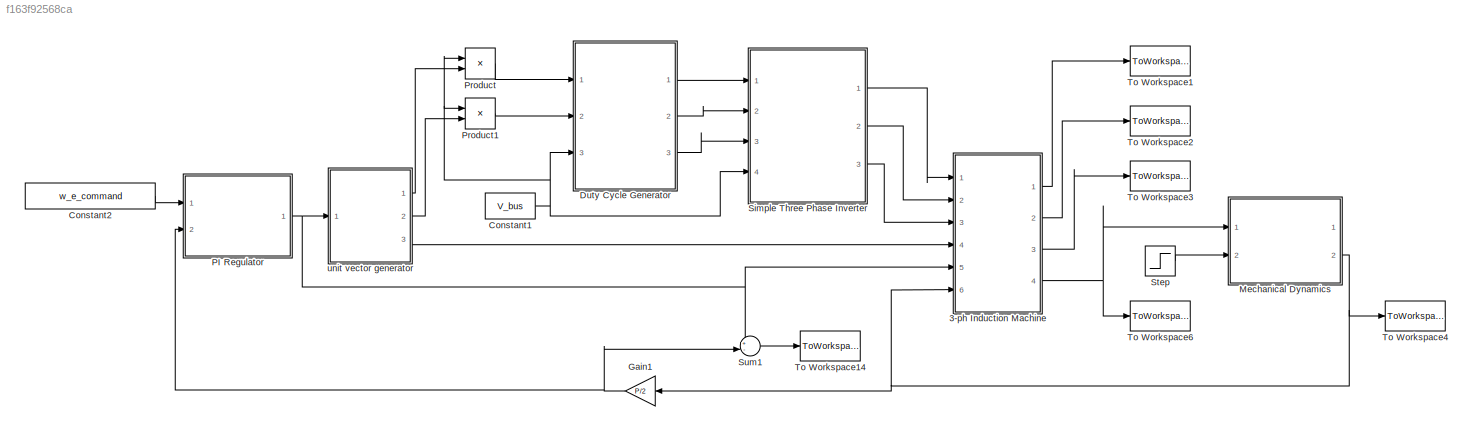
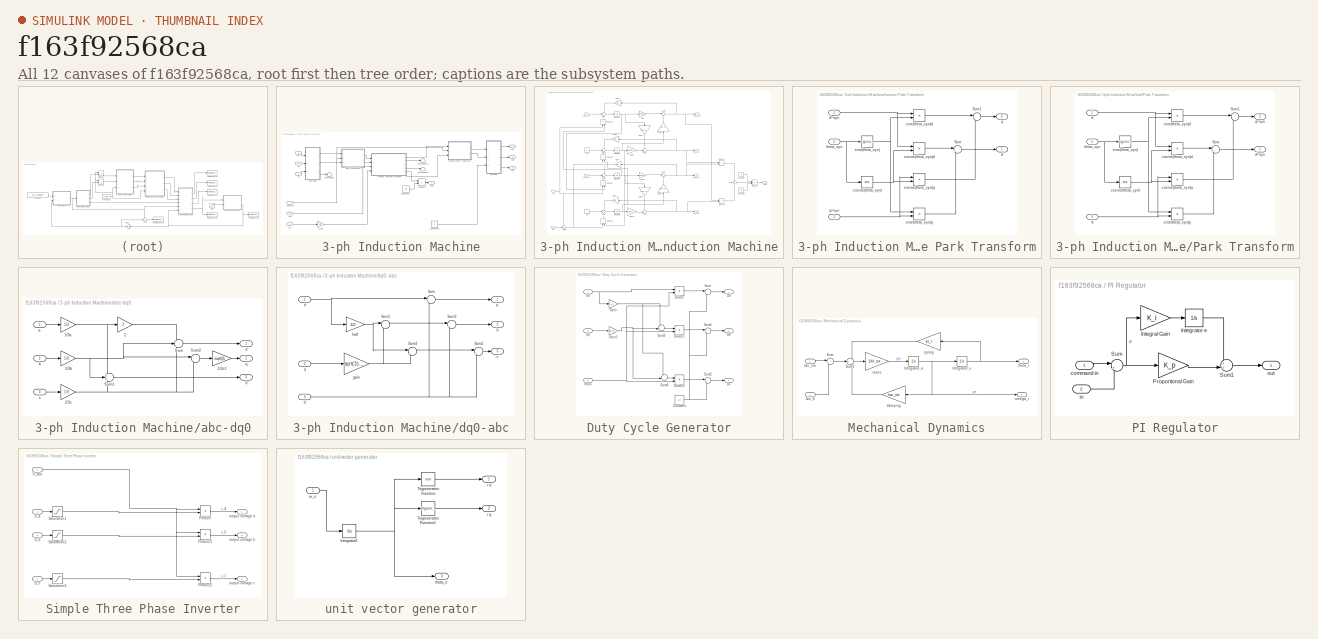
[diagram: thumbnail index - all 12 canvases of the model, root first then tree order]
MODEL slx_f163f92568ca
KIND model
CONFIG AbsTol = auto
CONFIG FixedStep = auto
CONFIG MaxStep = 1/(w_e*50)
CONFIG MinStep = auto
CONFIG RelTol = 1e-3
CONFIG SampleTimeConstraint = Unconstrained
CONFIG Solver = VariableStepAuto
CONFIG SolverMode = Auto
CONFIG SolverName = VariableStepAuto
CONFIG StartTime = 0.0
CONFIG StopTime = t_end
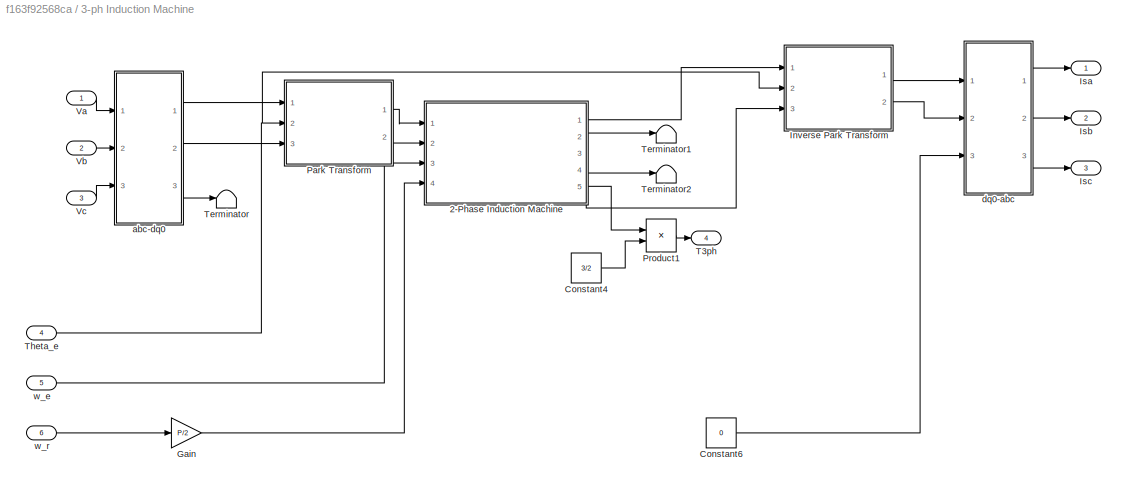
BLOCK [SubSystem] 3-ph Induction Machine
  Ports = [6, 4]
  RequestExecContextInheritance = off
  Variant = off
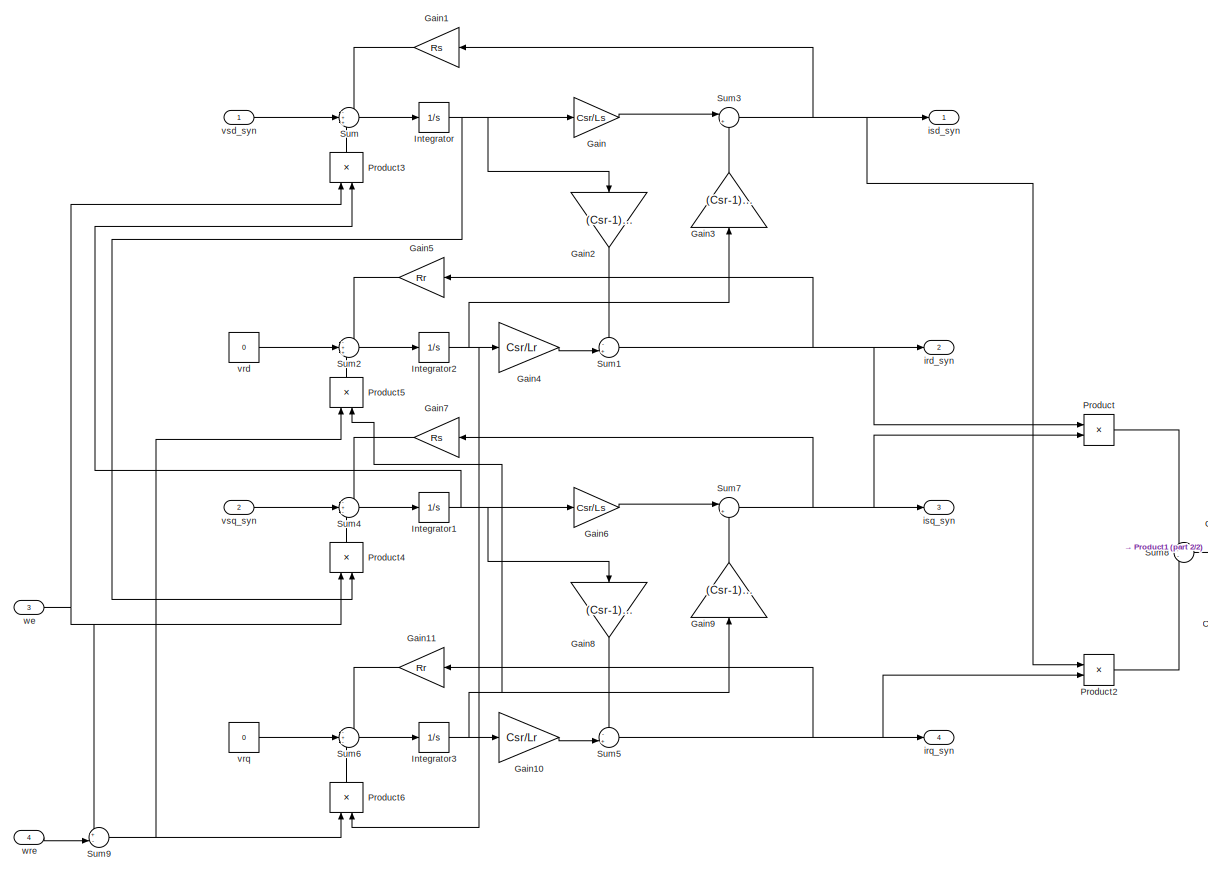
[diagram: 3-ph Induction Machine/2-Phase Induction Machine - part 1/2, most of the canvas]
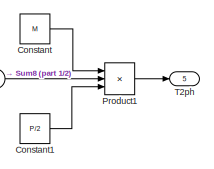
[diagram: 3-ph Induction Machine/2-Phase Induction Machine - part 2/2, middle right region]
BLOCK [SubSystem] 3-ph Induction Machine/2-Phase Induction Machine
  Ports = [4, 5]
  RequestExecContextInheritance = off
  Variant = off
BLOCK [Constant] 3-ph Induction Machine/2-Phase Induction Machine/Constant
  Value = M
BLOCK [Constant] 3-ph Induction Machine/2-Phase Induction Machine/Constant1
  Value = P/2
BLOCK [Gain] 3-ph Induction Machine/2-Phase Induction Machine/Gain
  Gain = Csr/Ls
  OutDataTypeStr = Inherit: Inherit via internal rule
  ParamDataTypeStr = Inherit: Inherit via internal rule
  SaturateOnIntegerOverflow = off
BLOCK [Gain] 3-ph Induction Machine/2-Phase Induction Machine/Gain1
  Gain = Rs
  OutDataTypeStr = Inherit: Inherit via internal rule
  ParamDataTypeStr = Inherit: Inherit via internal rule
  SaturateOnIntegerOverflow = off
BLOCK [Gain] 3-ph Induction Machine/2-Phase Induction Machine/Gain10
  Gain = Csr/Lr
  OutDataTypeStr = Inherit: Inherit via internal rule
  ParamDataTypeStr = Inherit: Inherit via internal rule
  SaturateOnIntegerOverflow = off
BLOCK [Gain] 3-ph Induction Machine/2-Phase Induction Machine/Gain11
  Gain = Rr
  OutDataTypeStr = Inherit: Inherit via internal rule
  ParamDataTypeStr = Inherit: Inherit via internal rule
  SaturateOnIntegerOverflow = off
BLOCK [Gain] 3-ph Induction Machine/2-Phase Induction Machine/Gain2
  Gain = (Csr-1)/M
  OutDataTypeStr = Inherit: Inherit via internal rule
  ParamDataTypeStr = Inherit: Inherit via internal rule
  SaturateOnIntegerOverflow = off
BLOCK [Gain] 3-ph Induction Machine/2-Phase Induction Machine/Gain3
  Gain = (Csr-1)/M
  OutDataTypeStr = Inherit: Inherit via internal rule
  ParamDataTypeStr = Inherit: Inherit via internal rule
  SaturateOnIntegerOverflow = off
BLOCK [Gain] 3-ph Induction Machine/2-Phase Induction Machine/Gain4
  Gain = Csr/Lr
  OutDataTypeStr = Inherit: Inherit via internal rule
  ParamDataTypeStr = Inherit: Inherit via internal rule
  SaturateOnIntegerOverflow = off
BLOCK [Gain] 3-ph Induction Machine/2-Phase Induction Machine/Gain5
  Gain = Rr
  OutDataTypeStr = Inherit: Inherit via internal rule
  ParamDataTypeStr = Inherit: Inherit via internal rule
  SaturateOnIntegerOverflow = off
BLOCK [Gain] 3-ph Induction Machine/2-Phase Induction Machine/Gain6
  Gain = Csr/Ls
  OutDataTypeStr = Inherit: Inherit via internal rule
  ParamDataTypeStr = Inherit: Inherit via internal rule
  SaturateOnIntegerOverflow = off
BLOCK [Gain] 3-ph Induction Machine/2-Phase Induction Machine/Gain7
  Gain = Rs
  OutDataTypeStr = Inherit: Inherit via internal rule
  ParamDataTypeStr = Inherit: Inherit via internal rule
  SaturateOnIntegerOverflow = off
BLOCK [Gain] 3-ph Induction Machine/2-Phase Induction Machine/Gain8
  Gain = (Csr-1)/M
  OutDataTypeStr = Inherit: Inherit via internal rule
  ParamDataTypeStr = Inherit: Inherit via internal rule
  SaturateOnIntegerOverflow = off
BLOCK [Gain] 3-ph Induction Machine/2-Phase Induction Machine/Gain9
  Gain = (Csr-1)/M
  OutDataTypeStr = Inherit: Inherit via internal rule
  ParamDataTypeStr = Inherit: Inherit via internal rule
  SaturateOnIntegerOverflow = off
BLOCK [Integrator] 3-ph Induction Machine/2-Phase Induction Machine/Integrator
  Ports = [1, 1]
BLOCK [Integrator] 3-ph Induction Machine/2-Phase Induction Machine/Integrator1
  Ports = [1, 1]
BLOCK [Integrator] 3-ph Induction Machine/2-Phase Induction Machine/Integrator2
  Ports = [1, 1]
BLOCK [Integrator] 3-ph Induction Machine/2-Phase Induction Machine/Integrator3
  Ports = [1, 1]
BLOCK [Product] 3-ph Induction Machine/2-Phase Induction Machine/Product
  InputSameDT = off
  OutDataTypeStr = Inherit: Inherit via internal rule
  Ports = [2, 1]
  RndMeth = Floor
  SaturateOnIntegerOverflow = off
BLOCK [Product] 3-ph Induction Machine/2-Phase Induction Machine/Product1
  InputSameDT = off
  Inputs = 3
  OutDataTypeStr = Inherit: Inherit via internal rule
  Ports = [3, 1]
  RndMeth = Floor
  SaturateOnIntegerOverflow = off
BLOCK [Product] 3-ph Induction Machine/2-Phase Induction Machine/Product2
  InputSameDT = off
  OutDataTypeStr = Inherit: Inherit via internal rule
  Ports = [2, 1]
  RndMeth = Floor
  SaturateOnIntegerOverflow = off
BLOCK [Product] 3-ph Induction Machine/2-Phase Induction Machine/Product3
  InputSameDT = off
  OutDataTypeStr = Inherit: Inherit via internal rule
  Ports = [2, 1]
  RndMeth = Floor
  SaturateOnIntegerOverflow = off
BLOCK [Product] 3-ph Induction Machine/2-Phase Induction Machine/Product4
  InputSameDT = off
  OutDataTypeStr = Inherit: Inherit via internal rule
  Ports = [2, 1]
  RndMeth = Floor
  SaturateOnIntegerOverflow = off
BLOCK [Product] 3-ph Induction Machine/2-Phase Induction Machine/Product5
  InputSameDT = off
  OutDataTypeStr = Inherit: Inherit via internal rule
  Ports = [2, 1]
  RndMeth = Floor
  SaturateOnIntegerOverflow = off
BLOCK [Product] 3-ph Induction Machine/2-Phase Induction Machine/Product6
  InputSameDT = off
  OutDataTypeStr = Inherit: Inherit via internal rule
  Ports = [2, 1]
  RndMeth = Floor
  SaturateOnIntegerOverflow = off
BLOCK [Sum] 3-ph Induction Machine/2-Phase Induction Machine/Sum
  IconShape = round
  InputSameDT = off
  Inputs = -++
  OutDataTypeStr = Inherit: Inherit via internal rule
  Ports = [3, 1]
  SaturateOnIntegerOverflow = off
BLOCK [Sum] 3-ph Induction Machine/2-Phase Induction Machine/Sum1
  IconShape = round
  InputSameDT = off
  Inputs = -+|
  OutDataTypeStr = Inherit: Inherit via internal rule
  Ports = [2, 1]
  SaturateOnIntegerOverflow = off
BLOCK [Sum] 3-ph Induction Machine/2-Phase Induction Machine/Sum2
  IconShape = round
  InputSameDT = off
  Inputs = -++
  OutDataTypeStr = Inherit: Inherit via internal rule
  Ports = [3, 1]
  SaturateOnIntegerOverflow = off
BLOCK [Sum] 3-ph Induction Machine/2-Phase Induction Machine/Sum3
  IconShape = round
  InputSameDT = off
  Inputs = |+-
  OutDataTypeStr = Inherit: Inherit via internal rule
  Ports = [2, 1]
  SaturateOnIntegerOverflow = off
BLOCK [Sum] 3-ph Induction Machine/2-Phase Induction Machine/Sum4
  IconShape = round
  InputSameDT = off
  Inputs = -+-
  OutDataTypeStr = Inherit: Inherit via internal rule
  Ports = [3, 1]
  SaturateOnIntegerOverflow = off
BLOCK [Sum] 3-ph Induction Machine/2-Phase Induction Machine/Sum5
  IconShape = round
  InputSameDT = off
  Inputs = -+|
  OutDataTypeStr = Inherit: Inherit via internal rule
  Ports = [2, 1]
  SaturateOnIntegerOverflow = off
BLOCK [Sum] 3-ph Induction Machine/2-Phase Induction Machine/Sum6
  IconShape = round
  InputSameDT = off
  Inputs = -+-
  OutDataTypeStr = Inherit: Inherit via internal rule
  Ports = [3, 1]
  SaturateOnIntegerOverflow = off
BLOCK [Sum] 3-ph Induction Machine/2-Phase Induction Machine/Sum7
  IconShape = round
  InputSameDT = off
  Inputs = |+-
  OutDataTypeStr = Inherit: Inherit via internal rule
  Ports = [2, 1]
  SaturateOnIntegerOverflow = off
BLOCK [Sum] 3-ph Induction Machine/2-Phase Induction Machine/Sum8
  IconShape = round
  InputSameDT = off
  Inputs = +-
  OutDataTypeStr = Inherit: Inherit via internal rule
  Ports = [2, 1]
  SaturateOnIntegerOverflow = off
BLOCK [Sum] 3-ph Induction Machine/2-Phase Induction Machine/Sum9
  IconShape = round
  InputSameDT = off
  Inputs = +-|
  OutDataTypeStr = Inherit: Inherit via internal rule
  Ports = [2, 1]
  SaturateOnIntegerOverflow = off
BLOCK [Outport] 3-ph Induction Machine/2-Phase Induction Machine/T2ph
  IconDisplay = Port number
  Port = 5
BLOCK [Outport] 3-ph Induction Machine/2-Phase Induction Machine/ird_syn
  IconDisplay = Port number
  Port = 2
BLOCK [Outport] 3-ph Induction Machine/2-Phase Induction Machine/irq_syn
  IconDisplay = Port number
  Port = 4
BLOCK [Outport] 3-ph Induction Machine/2-Phase Induction Machine/isd_syn
  IconDisplay = Port number
BLOCK [Outport] 3-ph Induction Machine/2-Phase Induction Machine/isq_syn
  IconDisplay = Port number
  Port = 3
BLOCK [Constant] 3-ph Induction Machine/2-Phase Induction Machine/vrd
  Value = 0
BLOCK [Constant] 3-ph Induction Machine/2-Phase Induction Machine/vrq
  Value = 0
BLOCK [Inport] 3-ph Induction Machine/2-Phase Induction Machine/vsd_syn
  IconDisplay = Port number
BLOCK [Inport] 3-ph Induction Machine/2-Phase Induction Machine/vsq_syn
  IconDisplay = Port number
  Port = 2
BLOCK [Inport] 3-ph Induction Machine/2-Phase Induction Machine/we
  IconDisplay = Port number
  Port = 3
BLOCK [Inport] 3-ph Induction Machine/2-Phase Induction Machine/wre
  IconDisplay = Port number
  Port = 4
BLOCK [Constant] 3-ph Induction Machine/Constant4
  Value = 3/2
BLOCK [Constant] 3-ph Induction Machine/Constant6
  Value = 0
BLOCK [Gain] 3-ph Induction Machine/Gain
  Gain = P/2
  OutDataTypeStr = Inherit: Inherit via internal rule
  ParamDataTypeStr = Inherit: Inherit via internal rule
  SaturateOnIntegerOverflow = off
BLOCK [SubSystem] 3-ph Induction Machine/Inverse Park Transform
  Ports = [3, 2]
  RequestExecContextInheritance = off
  Variant = off
BLOCK [Sum] 3-ph Induction Machine/Inverse Park Transform/Sum
  IconShape = round
  InputSameDT = off
  Inputs = |+-
  OutDataTypeStr = Inherit: Inherit via internal rule
  Ports = [2, 1]
  SaturateOnIntegerOverflow = off
BLOCK [Sum] 3-ph Induction Machine/Inverse Park Transform/Sum1
  IconShape = round
  InputSameDT = off
  Inputs = |++
  OutDataTypeStr = Inherit: Inherit via internal rule
  Ports = [2, 1]
  SaturateOnIntegerOverflow = off
BLOCK [Trigonometry] 3-ph Induction Machine/Inverse Park Transform/cosine(theta_syn)
  Operator = cos
  Ports = [1, 1]
BLOCK [Product] 3-ph Induction Machine/Inverse Park Transform/cosine(theta_syn)d
  InputSameDT = off
  OutDataTypeStr = Inherit: Inherit via internal rule
  Ports = [2, 1]
  RndMeth = Floor
  SaturateOnIntegerOverflow = off
BLOCK [Product] 3-ph Induction Machine/Inverse Park Transform/cosine(theta_syn)q
  InputSameDT = off
  OutDataTypeStr = Inherit: Inherit via internal rule
  Ports = [2, 1]
  RndMeth = Floor
  SaturateOnIntegerOverflow = off
BLOCK [Outport] 3-ph Induction Machine/Inverse Park Transform/d
  IconDisplay = Port number
BLOCK [Inport] 3-ph Induction Machine/Inverse Park Transform/d^syn
  IconDisplay = Port number
BLOCK [Outport] 3-ph Induction Machine/Inverse Park Transform/q
  IconDisplay = Port number
  Port = 2
BLOCK [Inport] 3-ph Induction Machine/Inverse Park Transform/q^syn
  IconDisplay = Port number
  Port = 3
BLOCK [Trigonometry] 3-ph Induction Machine/Inverse Park Transform/sine(theta_syn)
  Ports = [1, 1]
BLOCK [Product] 3-ph Induction Machine/Inverse Park Transform/sine(theta_syn)d
  InputSameDT = off
  OutDataTypeStr = Inherit: Inherit via internal rule
  Ports = [2, 1]
  RndMeth = Floor
  SaturateOnIntegerOverflow = off
BLOCK [Product] 3-ph Induction Machine/Inverse Park Transform/sine(theta_syn)q
  InputSameDT = off
  OutDataTypeStr = Inherit: Inherit via internal rule
  Ports = [2, 1]
  RndMeth = Floor
  SaturateOnIntegerOverflow = off
BLOCK [Inport] 3-ph Induction Machine/Inverse Park Transform/theta_syn
  IconDisplay = Port number
  Port = 2
BLOCK [Outport] 3-ph Induction Machine/Isa
  IconDisplay = Port number
BLOCK [Outport] 3-ph Induction Machine/Isb
  IconDisplay = Port number
  Port = 2
BLOCK [Outport] 3-ph Induction Machine/Isc
  IconDisplay = Port number
  Port = 3
BLOCK [SubSystem] 3-ph Induction Machine/Park Transform
  Ports = [3, 2]
  RequestExecContextInheritance = off
  Variant = off
BLOCK [Sum] 3-ph Induction Machine/Park Transform/Sum
  IconShape = round
  InputSameDT = off
  Inputs = |++
  OutDataTypeStr = Inherit: Inherit via internal rule
  Ports = [2, 1]
  SaturateOnIntegerOverflow = off
BLOCK [Sum] 3-ph Induction Machine/Park Transform/Sum1
  IconShape = round
  InputSameDT = off
  Inputs = |-+
  OutDataTypeStr = Inherit: Inherit via internal rule
  Ports = [2, 1]
  SaturateOnIntegerOverflow = off
BLOCK [Trigonometry] 3-ph Induction Machine/Park Transform/cosine(theta_syn)
  Operator = cos
  Ports = [1, 1]
BLOCK [Product] 3-ph Induction Machine/Park Transform/cosine(theta_syn)d
  InputSameDT = off
  OutDataTypeStr = Inherit: Inherit via internal rule
  Ports = [2, 1]
  RndMeth = Floor
  SaturateOnIntegerOverflow = off
BLOCK [Product] 3-ph Induction Machine/Park Transform/cosine(theta_syn)q
  InputSameDT = off
  OutDataTypeStr = Inherit: Inherit via internal rule
  Ports = [2, 1]
  RndMeth = Floor
  SaturateOnIntegerOverflow = off
BLOCK [Inport] 3-ph Induction Machine/Park Transform/d
  IconDisplay = Port number
BLOCK [Outport] 3-ph Induction Machine/Park Transform/d^syn
  IconDisplay = Port number
BLOCK [Inport] 3-ph Induction Machine/Park Transform/q
  IconDisplay = Port number
  Port = 3
BLOCK [Outport] 3-ph Induction Machine/Park Transform/q^syn
  IconDisplay = Port number
  Port = 2
BLOCK [Trigonometry] 3-ph Induction Machine/Park Transform/sine(theta_syn)
  Ports = [1, 1]
BLOCK [Product] 3-ph Induction Machine/Park Transform/sine(theta_syn)d
  InputSameDT = off
  OutDataTypeStr = Inherit: Inherit via internal rule
  Ports = [2, 1]
  RndMeth = Floor
  SaturateOnIntegerOverflow = off
BLOCK [Product] 3-ph Induction Machine/Park Transform/sine(theta_syn)q
  InputSameDT = off
  OutDataTypeStr = Inherit: Inherit via internal rule
  Ports = [2, 1]
  RndMeth = Floor
  SaturateOnIntegerOverflow = off
BLOCK [Inport] 3-ph Induction Machine/Park Transform/theta_syn
  IconDisplay = Port number
  Port = 2
BLOCK [Product] 3-ph Induction Machine/Product1
  InputSameDT = off
  OutDataTypeStr = Inherit: Inherit via internal rule
  Ports = [2, 1]
  RndMeth = Floor
  SaturateOnIntegerOverflow = off
BLOCK [Outport] 3-ph Induction Machine/T3ph
  IconDisplay = Port number
  Port = 4
BLOCK [Terminator] 3-ph Induction Machine/Terminator
BLOCK [Terminator] 3-ph Induction Machine/Terminator1
BLOCK [Terminator] 3-ph Induction Machine/Terminator2
BLOCK [Inport] 3-ph Induction Machine/Theta_e
  IconDisplay = Port number
  Port = 4
BLOCK [Inport] 3-ph Induction Machine/Va
  IconDisplay = Port number
BLOCK [Inport] 3-ph Induction Machine/Vb
  IconDisplay = Port number
  Port = 2
BLOCK [Inport] 3-ph Induction Machine/Vc
  IconDisplay = Port number
  Port = 3
BLOCK [SubSystem] 3-ph Induction Machine/abc-dq0
  Ports = [3, 3]
  RequestExecContextInheritance = off
  Variant = off
BLOCK [Outport] 3-ph Induction Machine/abc-dq0/0
  IconDisplay = Port number
  Port = 3
BLOCK [Gain] 3-ph Induction Machine/abc-dq0/1//3a
  Gain = 1/3
  OutDataTypeStr = Inherit: Inherit via internal rule
  ParamDataTypeStr = Inherit: Inherit via internal rule
  SaturateOnIntegerOverflow = off
BLOCK [Gain] 3-ph Induction Machine/abc-dq0/1//3b
  Gain = 1/3
  OutDataTypeStr = Inherit: Inherit via internal rule
  ParamDataTypeStr = Inherit: Inherit via internal rule
  SaturateOnIntegerOverflow = off
BLOCK [Gain] 3-ph Induction Machine/abc-dq0/1//3c
  Gain = 1/3
  OutDataTypeStr = Inherit: Inherit via internal rule
  ParamDataTypeStr = Inherit: Inherit via internal rule
  SaturateOnIntegerOverflow = off
BLOCK [Gain] 3-ph Induction Machine/abc-dq0/1//3c1
  Gain = sqrt(3)
  OutDataTypeStr = Inherit: Inherit via internal rule
  ParamDataTypeStr = Inherit: Inherit via internal rule
  SaturateOnIntegerOverflow = off
BLOCK [Gain] 3-ph Induction Machine/abc-dq0/2
  Gain = 2
  OutDataTypeStr = Inherit: Inherit via internal rule
  ParamDataTypeStr = Inherit: Inherit via internal rule
  SaturateOnIntegerOverflow = off
BLOCK [Sum] 3-ph Induction Machine/abc-dq0/Sum
  IconShape = round
  InputSameDT = off
  Inputs = +--
  OutDataTypeStr = Inherit: Inherit via internal rule
  Ports = [3, 1]
  SaturateOnIntegerOverflow = off
BLOCK [Sum] 3-ph Induction Machine/abc-dq0/Sum1
  IconShape = round
  InputSameDT = off
  Inputs = +++
  OutDataTypeStr = Inherit: Inherit via internal rule
  Ports = [3, 1]
  SaturateOnIntegerOverflow = off
BLOCK [Sum] 3-ph Induction Machine/abc-dq0/Sum2
  IconShape = round
  InputSameDT = off
  Inputs = |+-
  OutDataTypeStr = Inherit: Inherit via internal rule
  Ports = [2, 1]
  SaturateOnIntegerOverflow = off
BLOCK [Inport] 3-ph Induction Machine/abc-dq0/a
  IconDisplay = Port number
BLOCK [Inport] 3-ph Induction Machine/abc-dq0/b
  IconDisplay = Port number
  Port = 2
BLOCK [Inport] 3-ph Induction Machine/abc-dq0/c
  IconDisplay = Port number
  Port = 3
BLOCK [Outport] 3-ph Induction Machine/abc-dq0/d
  IconDisplay = Port number
BLOCK [Outport] 3-ph Induction Machine/abc-dq0/q
  IconDisplay = Port number
  Port = 2
BLOCK [SubSystem] 3-ph Induction Machine/dq0-abc
  Ports = [3, 3]
  RequestExecContextInheritance = off
  Variant = off
BLOCK [Inport] 3-ph Induction Machine/dq0-abc/0
  IconDisplay = Port number
  Port = 3
BLOCK [Sum] 3-ph Induction Machine/dq0-abc/Sum
  IconShape = round
  InputSameDT = off
  Inputs = |++
  OutDataTypeStr = Inherit: Inherit via internal rule
  Ports = [2, 1]
  SaturateOnIntegerOverflow = off
BLOCK [Sum] 3-ph Induction Machine/dq0-abc/Sum1
  IconShape = round
  InputSameDT = off
  Inputs = |-+
  OutDataTypeStr = Inherit: Inherit via internal rule
  Ports = [2, 1]
  SaturateOnIntegerOverflow = off
BLOCK [Sum] 3-ph Induction Machine/dq0-abc/Sum2
  IconShape = round
  InputSameDT = off
  Inputs = |++
  OutDataTypeStr = Inherit: Inherit via internal rule
  Ports = [2, 1]
  SaturateOnIntegerOverflow = off
BLOCK [Sum] 3-ph Induction Machine/dq0-abc/Sum3
  IconShape = round
  InputSameDT = off
  Inputs = |++
  OutDataTypeStr = Inherit: Inherit via internal rule
  Ports = [2, 1]
  SaturateOnIntegerOverflow = off
BLOCK [Sum] 3-ph Induction Machine/dq0-abc/Sum4
  IconShape = round
  InputSameDT = off
  Inputs = |--
  OutDataTypeStr = Inherit: Inherit via internal rule
  Ports = [2, 1]
  SaturateOnIntegerOverflow = off
BLOCK [Outport] 3-ph Induction Machine/dq0-abc/a
  IconDisplay = Port number
BLOCK [Outport] 3-ph Induction Machine/dq0-abc/b
  IconDisplay = Port number
  Port = 2
BLOCK [Outport] 3-ph Induction Machine/dq0-abc/c
  IconDisplay = Port number
  Port = 3
BLOCK [Inport] 3-ph Induction Machine/dq0-abc/d
  IconDisplay = Port number
BLOCK [Gain] 3-ph Induction Machine/dq0-abc/gain
  Gain = sqrt(3)/2
  OutDataTypeStr = Inherit: Inherit via internal rule
  ParamDataTypeStr = Inherit: Inherit via internal rule
  SaturateOnIntegerOverflow = off
BLOCK [Gain] 3-ph Induction Machine/dq0-abc/half
  Gain = 1/2
  OutDataTypeStr = Inherit: Inherit via internal rule
  ParamDataTypeStr = Inherit: Inherit via internal rule
  SaturateOnIntegerOverflow = off
BLOCK [Inport] 3-ph Induction Machine/dq0-abc/q
  IconDisplay = Port number
  Port = 2
BLOCK [Inport] 3-ph Induction Machine/w_e
  IconDisplay = Port number
  Port = 5
BLOCK [Inport] 3-ph Induction Machine/w_r
  IconDisplay = Port number
  Port = 6
BLOCK [Constant] Constant1
  Value = V_bus
BLOCK [Constant] Constant2
  Value = w_e_command
BLOCK [SubSystem] Duty Cycle Generator
  Ports = [3, 3]
  RequestExecContextInheritance = off
  Variant = off
BLOCK [Constant] Duty Cycle Generator/Constant
  Value = 1/2
BLOCK [Outport] Duty Cycle Generator/Da
  IconDisplay = Port number
BLOCK [Outport] Duty Cycle Generator/Db
  IconDisplay = Port number
  Port = 2
BLOCK [Outport] Duty Cycle Generator/Dc
  IconDisplay = Port number
  Port = 3
BLOCK [Product] Duty Cycle Generator/Divide
  InputSameDT = off
  Inputs = */
  OutDataTypeStr = Inherit: Inherit via internal rule
  Ports = [2, 1]
  RndMeth = Floor
  SaturateOnIntegerOverflow = off
BLOCK [Product] Duty Cycle Generator/Divide1
  InputSameDT = off
  Inputs = */
  OutDataTypeStr = Inherit: Inherit via internal rule
  Ports = [2, 1]
  RndMeth = Floor
  SaturateOnIntegerOverflow = off
BLOCK [Product] Duty Cycle Generator/Divide2
  InputSameDT = off
  Inputs = */
  OutDataTypeStr = Inherit: Inherit via internal rule
  Ports = [2, 1]
  RndMeth = Floor
  SaturateOnIntegerOverflow = off
BLOCK [Gain] Duty Cycle Generator/Gain
  Gain = 1/2
  OutDataTypeStr = Inherit: Inherit via internal rule
  ParamDataTypeStr = Inherit: Inherit via internal rule
  SaturateOnIntegerOverflow = off
BLOCK [Gain] Duty Cycle Generator/Gain1
  Gain = sqrt(3)/2
  OutDataTypeStr = Inherit: Inherit via internal rule
  ParamDataTypeStr = Inherit: Inherit via internal rule
  SaturateOnIntegerOverflow = off
BLOCK [Sum] Duty Cycle Generator/Sum
  IconShape = round
  InputSameDT = off
  Inputs = |++
  OutDataTypeStr = Inherit: Inherit via internal rule
  Ports = [2, 1]
  SaturateOnIntegerOverflow = off
BLOCK [Sum] Duty Cycle Generator/Sum1
  IconShape = round
  InputSameDT = off
  Inputs = |++
  OutDataTypeStr = Inherit: Inherit via internal rule
  Ports = [2, 1]
  SaturateOnIntegerOverflow = off
BLOCK [Sum] Duty Cycle Generator/Sum2
  IconShape = round
  InputSameDT = off
  Inputs = |++
  OutDataTypeStr = Inherit: Inherit via internal rule
  Ports = [2, 1]
  SaturateOnIntegerOverflow = off
BLOCK [Sum] Duty Cycle Generator/Sum3
  IconShape = round
  InputSameDT = off
  Inputs = -+|
  OutDataTypeStr = Inherit: Inherit via internal rule
  Ports = [2, 1]
  SaturateOnIntegerOverflow = off
BLOCK [Sum] Duty Cycle Generator/Sum4
  IconShape = round
  InputSameDT = off
  Inputs = --|
  OutDataTypeStr = Inherit: Inherit via internal rule
  Ports = [2, 1]
  SaturateOnIntegerOverflow = off
BLOCK [Inport] Duty Cycle Generator/Vbus
  IconDisplay = Port number
  Port = 3
BLOCK [Inport] Duty Cycle Generator/Vd
  IconDisplay = Port number
BLOCK [Inport] Duty Cycle Generator/Vq
  IconDisplay = Port number
  Port = 2
BLOCK [Gain] Gain1
  Gain = P/2
  OutDataTypeStr = Inherit: Inherit via internal rule
  ParamDataTypeStr = Inherit: Inherit via internal rule
  SaturateOnIntegerOverflow = off
BLOCK [SubSystem] Mechanical Dynamics
  Ports = [2, 2]
  RequestExecContextInheritance = off
  Variant = off
BLOCK [Integrator] Mechanical Dynamics/Integrator_a
  Ports = [1, 1]
BLOCK [Integrator] Mechanical Dynamics/Integrator_u
  Ports = [1, 1]
BLOCK [Sum] Mechanical Dynamics/Sum
  IconShape = round
  InputSameDT = off
  Inputs = |+-
  OutDataTypeStr = Inherit: Inherit via internal rule
  Ports = [2, 1]
  SaturateOnIntegerOverflow = off
BLOCK [Sum] Mechanical Dynamics/Sum1
  IconShape = round
  InputSameDT = off
  Inputs = -+-
  OutDataTypeStr = Inherit: Inherit via internal rule
  Ports = [3, 1]
  SaturateOnIntegerOverflow = off
BLOCK [Gain] Mechanical Dynamics/damping
  Gain = bw_tot
  OutDataTypeStr = Inherit: Inherit via internal rule
  ParamDataTypeStr = Inherit: Inherit via internal rule
  SaturateOnIntegerOverflow = off
BLOCK [Gain] Mechanical Dynamics/mass
  Gain = 1/H_tot
  OutDataTypeStr = Inherit: Inherit via internal rule
  ParamDataTypeStr = Inherit: Inherit via internal rule
  SaturateOnIntegerOverflow = off
BLOCK [Outport] Mechanical Dynamics/omega_r
  IconDisplay = Port number
  Port = 2
BLOCK [Gain] Mechanical Dynamics/spring
  Gain = kt_l
  OutDataTypeStr = Inherit: Inherit via internal rule
  ParamDataTypeStr = Inherit: Inherit via internal rule
  SaturateOnIntegerOverflow = off
BLOCK [Inport] Mechanical Dynamics/tau_d
  IconDisplay = Port number
  Port = 2
BLOCK [Inport] Mechanical Dynamics/tau_em
  IconDisplay = Port number
BLOCK [Outport] Mechanical Dynamics/theta_r
  IconDisplay = Port number
BLOCK [SubSystem] PI Regulator
  Ports = [2, 1]
  RequestExecContextInheritance = off
  Variant = off
BLOCK [Gain] PI Regulator/Integral Gain
  Gain = K_i
BLOCK [Integrator] PI Regulator/Integrator e
  Ports = [1, 1]
BLOCK [Gain] PI Regulator/Proportional Gain
  Gain = K_p
BLOCK [Sum] PI Regulator/Sum
  IconShape = round
  InputSameDT = off
  Inputs = |+-
  OutDataTypeStr = Inherit: Inherit via internal rule
  Ports = [2, 1]
BLOCK [Sum] PI Regulator/Sum1
  IconShape = round
  InputSameDT = off
  Inputs = ++|
  OutDataTypeStr = Inherit: Inherit via internal rule
  Ports = [2, 1]
BLOCK [Inport] PI Regulator/command in
  IconDisplay = Port number
BLOCK [Inport] PI Regulator/in
  IconDisplay = Port number
  Port = 2
BLOCK [Outport] PI Regulator/out
  IconDisplay = Port number
BLOCK [Product] Product
  InputSameDT = off
  OutDataTypeStr = Inherit: Inherit via internal rule
  Ports = [2, 1]
  RndMeth = Floor
  SaturateOnIntegerOverflow = off
BLOCK [Product] Product1
  InputSameDT = off
  OutDataTypeStr = Inherit: Inherit via internal rule
  Ports = [2, 1]
  RndMeth = Floor
  SaturateOnIntegerOverflow = off
BLOCK [SubSystem] Simple Three Phase Inverter
  Ports = [4, 3]
  RequestExecContextInheritance = off
  Variant = off
BLOCK [Inport] Simple Three Phase Inverter/D_a
  IconDisplay = Port number
BLOCK [Inport] Simple Three Phase Inverter/D_b
  IconDisplay = Port number
  Port = 2
BLOCK [Inport] Simple Three Phase Inverter/D_c
  IconDisplay = Port number
  Port = 3
BLOCK [Product] Simple Three Phase Inverter/Product
  InputSameDT = off
  OutDataTypeStr = Inherit: Inherit via internal rule
  Ports = [2, 1]
  RndMeth = Floor
  SaturateOnIntegerOverflow = off
BLOCK [Product] Simple Three Phase Inverter/Product1
  InputSameDT = off
  OutDataTypeStr = Inherit: Inherit via internal rule
  Ports = [2, 1]
  RndMeth = Floor
  SaturateOnIntegerOverflow = off
BLOCK [Product] Simple Three Phase Inverter/Product2
  InputSameDT = off
  OutDataTypeStr = Inherit: Inherit via internal rule
  Ports = [2, 1]
  RndMeth = Floor
  SaturateOnIntegerOverflow = off
BLOCK [Saturate] Simple Three Phase Inverter/Saturation1
  InputPortMap = u0
  LowerLimit = 0
  Ports = [1, 1]
  UpperLimit = 1
BLOCK [Saturate] Simple Three Phase Inverter/Saturation2
  InputPortMap = u0
  LowerLimit = 0
  Ports = [1, 1]
  UpperLimit = 1
BLOCK [Saturate] Simple Three Phase Inverter/Saturation3
  InputPortMap = u0
  LowerLimit = 0
  Ports = [1, 1]
  UpperLimit = 1
BLOCK [Inport] Simple Three Phase Inverter/V_Bus
  IconDisplay = Port number
  Port = 4
BLOCK [Outport] Simple Three Phase Inverter/output voltage a
  IconDisplay = Port number
BLOCK [Outport] Simple Three Phase Inverter/output voltage b
  IconDisplay = Port number
  Port = 2
BLOCK [Outport] Simple Three Phase Inverter/output voltage c
  IconDisplay = Port number
  Port = 3
BLOCK [Step] Step
  After = 200
  SampleTime = 0
  Time = 3
BLOCK [Sum] Sum1
  IconShape = round
  InputSameDT = off
  Inputs = +-|
  OutDataTypeStr = Inherit: Inherit via internal rule
  Ports = [2, 1]
  SaturateOnIntegerOverflow = off
BLOCK [ToWorkspace] To Workspace1
  FixptAsFi = on
  MaxDataPoints = inf
  Ports = [1]
  SampleTime = -1
  Save2DSignal = 3-D array (concatenate along third dimension)
  VariableName = Isa
BLOCK [ToWorkspace] To Workspace14
  FixptAsFi = on
  MaxDataPoints = inf
  Ports = [1]
  SampleTime = -1
  Save2DSignal = 3-D array (concatenate along third dimension)
  VariableName = w_s
BLOCK [ToWorkspace] To Workspace2
  FixptAsFi = on
  MaxDataPoints = inf
  Ports = [1]
  SampleTime = -1
  Save2DSignal = 3-D array (concatenate along third dimension)
  VariableName = Isb
BLOCK [ToWorkspace] To Workspace3
  FixptAsFi = on
  MaxDataPoints = inf
  Ports = [1]
  SampleTime = -1
  Save2DSignal = 3-D array (concatenate along third dimension)
  VariableName = Isc
BLOCK [ToWorkspace] To Workspace4
  FixptAsFi = on
  MaxDataPoints = inf
  Ports = [1]
  SampleTime = -1
  Save2DSignal = 3-D array (concatenate along third dimension)
  VariableName = w_r
BLOCK [ToWorkspace] To Workspace6
  FixptAsFi = on
  MaxDataPoints = inf
  Ports = [1]
  SampleTime = -1
  Save2DSignal = 3-D array (concatenate along third dimension)
  VariableName = tau
BLOCK [SubSystem] unit vector generator
  Ports = [1, 3]
  RequestExecContextInheritance = off
  Variant = off
BLOCK [Integrator] unit vector generator/Integrator2
  Ports = [1, 1]
BLOCK [Trigonometry] unit vector generator/Trigonometric Function
  Operator = cos
  Ports = [1, 1]
BLOCK [Trigonometry] unit vector generator/Trigonometric Function1
  Ports = [1, 1]
BLOCK [Outport] unit vector generator/r d
  IconDisplay = Port number
BLOCK [Outport] unit vector generator/r q
  IconDisplay = Port number
  Port = 2
BLOCK [Outport] unit vector generator/theta_e
  IconDisplay = Port number
  Port = 3
BLOCK [Inport] unit vector generator/w_e
  IconDisplay = Port number
LINE 3-ph Induction Machine/2-Phase Induction Machine/Constant1:1 -> 3-ph Induction Machine/2-Phase Induction Machine/Product1:3
LINE 3-ph Induction Machine/2-Phase Induction Machine/Constant:1 -> 3-ph Induction Machine/2-Phase Induction Machine/Product1:1
LINE 3-ph Induction Machine/2-Phase Induction Machine/Gain10:1 -> 3-ph Induction Machine/2-Phase Induction Machine/Sum5:2
LINE 3-ph Induction Machine/2-Phase Induction Machine/Gain11:1 -> 3-ph Induction Machine/2-Phase Induction Machine/Sum6:1
LINE 3-ph Induction Machine/2-Phase Induction Machine/Gain1:1 -> 3-ph Induction Machine/2-Phase Induction Machine/Sum:1
LINE 3-ph Induction Machine/2-Phase Induction Machine/Gain2:1 -> 3-ph Induction Machine/2-Phase Induction Machine/Sum1:1
LINE 3-ph Induction Machine/2-Phase Induction Machine/Gain3:1 -> 3-ph Induction Machine/2-Phase Induction Machine/Sum3:2
LINE 3-ph Induction Machine/2-Phase Induction Machine/Gain4:1 -> 3-ph Induction Machine/2-Phase Induction Machine/Sum1:2
LINE 3-ph Induction Machine/2-Phase Induction Machine/Gain5:1 -> 3-ph Induction Machine/2-Phase Induction Machine/Sum2:1
LINE 3-ph Induction Machine/2-Phase Induction Machine/Gain6:1 -> 3-ph Induction Machine/2-Phase Induction Machine/Sum7:1
LINE 3-ph Induction Machine/2-Phase Induction Machine/Gain7:1 -> 3-ph Induction Machine/2-Phase Induction Machine/Sum4:1
LINE 3-ph Induction Machine/2-Phase Induction Machine/Gain8:1 -> 3-ph Induction Machine/2-Phase Induction Machine/Sum5:1
LINE 3-ph Induction Machine/2-Phase Induction Machine/Gain9:1 -> 3-ph Induction Machine/2-Phase Induction Machine/Sum7:2
LINE 3-ph Induction Machine/2-Phase Induction Machine/Gain:1 -> 3-ph Induction Machine/2-Phase Induction Machine/Sum3:1
NET 3-ph Induction Machine/2-Phase Induction Machine/Integrator1:1 -> 3-ph Induction Machine/2-Phase Induction Machine/Gain6:1, 3-ph Induction Machine/2-Phase Induction Machine/Gain8:1, 3-ph Induction Machine/2-Phase Induction Machine/Product3:2
NET 3-ph Induction Machine/2-Phase Induction Machine/Integrator2:1 -> 3-ph Induction Machine/2-Phase Induction Machine/Gain3:1, 3-ph Induction Machine/2-Phase Induction Machine/Gain4:1, 3-ph Induction Machine/2-Phase Induction Machine/Product6:2
NET 3-ph Induction Machine/2-Phase Induction Machine/Integrator3:1 -> 3-ph Induction Machine/2-Phase Induction Machine/Gain10:1, 3-ph Induction Machine/2-Phase Induction Machine/Gain9:1, 3-ph Induction Machine/2-Phase Induction Machine/Product5:2
NET 3-ph Induction Machine/2-Phase Induction Machine/Integrator:1 -> 3-ph Induction Machine/2-Phase Induction Machine/Gain2:1, 3-ph Induction Machine/2-Phase Induction Machine/Gain:1, 3-ph Induction Machine/2-Phase Induction Machine/Product4:2
LINE 3-ph Induction Machine/2-Phase Induction Machine/Product1:1 -> 3-ph Induction Machine/2-Phase Induction Machine/T2ph:1
LINE 3-ph Induction Machine/2-Phase Induction Machine/Product2:1 -> 3-ph Induction Machine/2-Phase Induction Machine/Sum8:2
LINE 3-ph Induction Machine/2-Phase Induction Machine/Product3:1 -> 3-ph Induction Machine/2-Phase Induction Machine/Sum:3
LINE 3-ph Induction Machine/2-Phase Induction Machine/Product4:1 -> 3-ph Induction Machine/2-Phase Induction Machine/Sum4:3
LINE 3-ph Induction Machine/2-Phase Induction Machine/Product5:1 -> 3-ph Induction Machine/2-Phase Induction Machine/Sum2:3
LINE 3-ph Induction Machine/2-Phase Induction Machine/Product6:1 -> 3-ph Induction Machine/2-Phase Induction Machine/Sum6:3
LINE 3-ph Induction Machine/2-Phase Induction Machine/Product:1 -> 3-ph Induction Machine/2-Phase Induction Machine/Sum8:1
NET 3-ph Induction Machine/2-Phase Induction Machine/Sum1:1 -> 3-ph Induction Machine/2-Phase Induction Machine/Gain5:1, 3-ph Induction Machine/2-Phase Induction Machine/Product:1, 3-ph Induction Machine/2-Phase Induction Machine/ird_syn:1
LINE 3-ph Induction Machine/2-Phase Induction Machine/Sum2:1 -> 3-ph Induction Machine/2-Phase Induction Machine/Integrator2:1
NET 3-ph Induction Machine/2-Phase Induction Machine/Sum3:1 -> 3-ph Induction Machine/2-Phase Induction Machine/Gain1:1, 3-ph Induction Machine/2-Phase Induction Machine/Product2:1, 3-ph Induction Machine/2-Phase Induction Machine/isd_syn:1
LINE 3-ph Induction Machine/2-Phase Induction Machine/Sum4:1 -> 3-ph Induction Machine/2-Phase Induction Machine/Integrator1:1
NET 3-ph Induction Machine/2-Phase Induction Machine/Sum5:1 -> 3-ph Induction Machine/2-Phase Induction Machine/Gain11:1, 3-ph Induction Machine/2-Phase Induction Machine/Product2:2, 3-ph Induction Machine/2-Phase Induction Machine/irq_syn:1
LINE 3-ph Induction Machine/2-Phase Induction Machine/Sum6:1 -> 3-ph Induction Machine/2-Phase Induction Machine/Integrator3:1
NET 3-ph Induction Machine/2-Phase Induction Machine/Sum7:1 -> 3-ph Induction Machine/2-Phase Induction Machine/Gain7:1, 3-ph Induction Machine/2-Phase Induction Machine/Product:2, 3-ph Induction Machine/2-Phase Induction Machine/isq_syn:1
LINE 3-ph Induction Machine/2-Phase Induction Machine/Sum8:1 -> 3-ph Induction Machine/2-Phase Induction Machine/Product1:2
NET 3-ph Induction Machine/2-Phase Induction Machine/Sum9:1 -> 3-ph Induction Machine/2-Phase Induction Machine/Product5:1, 3-ph Induction Machine/2-Phase Induction Machine/Product6:1
LINE 3-ph Induction Machine/2-Phase Induction Machine/Sum:1 -> 3-ph Induction Machine/2-Phase Induction Machine/Integrator:1
LINE 3-ph Induction Machine/2-Phase Induction Machine/vrd:1 -> 3-ph Induction Machine/2-Phase Induction Machine/Sum2:2
LINE 3-ph Induction Machine/2-Phase Induction Machine/vrq:1 -> 3-ph Induction Machine/2-Phase Induction Machine/Sum6:2
LINE 3-ph Induction Machine/2-Phase Induction Machine/vsd_syn:1 -> 3-ph Induction Machine/2-Phase Induction Machine/Sum:2
LINE 3-ph Induction Machine/2-Phase Induction Machine/vsq_syn:1 -> 3-ph Induction Machine/2-Phase Induction Machine/Sum4:2
NET 3-ph Induction Machine/2-Phase Induction Machine/we:1 -> 3-ph Induction Machine/2-Phase Induction Machine/Product3:1, 3-ph Induction Machine/2-Phase Induction Machine/Product4:1, 3-ph Induction Machine/2-Phase Induction Machine/Sum9:1
LINE 3-ph Induction Machine/2-Phase Induction Machine/wre:1 -> 3-ph Induction Machine/2-Phase Induction Machine/Sum9:2
LINE 3-ph Induction Machine/2-Phase Induction Machine:1 -> 3-ph Induction Machine/Inverse Park Transform:1
LINE 3-ph Induction Machine/2-Phase Induction Machine:2 -> 3-ph Induction Machine/Terminator1:1
LINE 3-ph Induction Machine/2-Phase Induction Machine:3 -> 3-ph Induction Machine/Inverse Park Transform:3
LINE 3-ph Induction Machine/2-Phase Induction Machine:4 -> 3-ph Induction Machine/Terminator2:1
LINE 3-ph Induction Machine/2-Phase Induction Machine:5 -> 3-ph Induction Machine/Product1:1
LINE 3-ph Induction Machine/Constant4:1 -> 3-ph Induction Machine/Product1:2
LINE 3-ph Induction Machine/Constant6:1 -> 3-ph Induction Machine/dq0-abc:3
LINE 3-ph Induction Machine/Gain:1 -> 3-ph Induction Machine/2-Phase Induction Machine:4
LINE 3-ph Induction Machine/Inverse Park Transform/Sum1:1 -> 3-ph Induction Machine/Inverse Park Transform/q:1
LINE 3-ph Induction Machine/Inverse Park Transform/Sum:1 -> 3-ph Induction Machine/Inverse Park Transform/d:1
NET 3-ph Induction Machine/Inverse Park Transform/cosine(theta_syn):1 -> 3-ph Induction Machine/Inverse Park Transform/cosine(theta_syn)d:2, 3-ph Induction Machine/Inverse Park Transform/cosine(theta_syn)q:2
LINE 3-ph Induction Machine/Inverse Park Transform/cosine(theta_syn)d:1 -> 3-ph Induction Machine/Inverse Park Transform/Sum:1
LINE 3-ph Induction Machine/Inverse Park Transform/cosine(theta_syn)q:1 -> 3-ph Induction Machine/Inverse Park Transform/Sum1:2
NET 3-ph Induction Machine/Inverse Park Transform/d^syn:1 -> 3-ph Induction Machine/Inverse Park Transform/cosine(theta_syn)d:1, 3-ph Induction Machine/Inverse Park Transform/sine(theta_syn)d:1
NET 3-ph Induction Machine/Inverse Park Transform/q^syn:1 -> 3-ph Induction Machine/Inverse Park Transform/cosine(theta_syn)q:1, 3-ph Induction Machine/Inverse Park Transform/sine(theta_syn)q:2
NET 3-ph Induction Machine/Inverse Park Transform/sine(theta_syn):1 -> 3-ph Induction Machine/Inverse Park Transform/sine(theta_syn)d:2, 3-ph Induction Machine/Inverse Park Transform/sine(theta_syn)q:1
LINE 3-ph Induction Machine/Inverse Park Transform/sine(theta_syn)d:1 -> 3-ph Induction Machine/Inverse Park Transform/Sum1:1
LINE 3-ph Induction Machine/Inverse Park Transform/sine(theta_syn)q:1 -> 3-ph Induction Machine/Inverse Park Transform/Sum:2
NET 3-ph Induction Machine/Inverse Park Transform/theta_syn:1 -> 3-ph Induction Machine/Inverse Park Transform/cosine(theta_syn):1, 3-ph Induction Machine/Inverse Park Transform/sine(theta_syn):1
LINE 3-ph Induction Machine/Inverse Park Transform:1 -> 3-ph Induction Machine/dq0-abc:1
LINE 3-ph Induction Machine/Inverse Park Transform:2 -> 3-ph Induction Machine/dq0-abc:2
LINE 3-ph Induction Machine/Park Transform/Sum1:1 -> 3-ph Induction Machine/Park Transform/q^syn:1
LINE 3-ph Induction Machine/Park Transform/Sum:1 -> 3-ph Induction Machine/Park Transform/d^syn:1
NET 3-ph Induction Machine/Park Transform/cosine(theta_syn):1 -> 3-ph Induction Machine/Park Transform/cosine(theta_syn)d:2, 3-ph Induction Machine/Park Transform/cosine(theta_syn)q:2
LINE 3-ph Induction Machine/Park Transform/cosine(theta_syn)d:1 -> 3-ph Induction Machine/Park Transform/Sum:1
LINE 3-ph Induction Machine/Park Transform/cosine(theta_syn)q:1 -> 3-ph Induction Machine/Park Transform/Sum1:2
NET 3-ph Induction Machine/Park Transform/d:1 -> 3-ph Induction Machine/Park Transform/cosine(theta_syn)d:1, 3-ph Induction Machine/Park Transform/sine(theta_syn)d:1
NET 3-ph Induction Machine/Park Transform/q:1 -> 3-ph Induction Machine/Park Transform/cosine(theta_syn)q:1, 3-ph Induction Machine/Park Transform/sine(theta_syn)q:2
NET 3-ph Induction Machine/Park Transform/sine(theta_syn):1 -> 3-ph Induction Machine/Park Transform/sine(theta_syn)d:2, 3-ph Induction Machine/Park Transform/sine(theta_syn)q:1
LINE 3-ph Induction Machine/Park Transform/sine(theta_syn)d:1 -> 3-ph Induction Machine/Park Transform/Sum1:1
LINE 3-ph Induction Machine/Park Transform/sine(theta_syn)q:1 -> 3-ph Induction Machine/Park Transform/Sum:2
NET 3-ph Induction Machine/Park Transform/theta_syn:1 -> 3-ph Induction Machine/Park Transform/cosine(theta_syn):1, 3-ph Induction Machine/Park Transform/sine(theta_syn):1
LINE 3-ph Induction Machine/Park Transform:1 -> 3-ph Induction Machine/2-Phase Induction Machine:1
LINE 3-ph Induction Machine/Park Transform:2 -> 3-ph Induction Machine/2-Phase Induction Machine:2
LINE 3-ph Induction Machine/Product1:1 -> 3-ph Induction Machine/T3ph:1
NET 3-ph Induction Machine/Theta_e:1 -> 3-ph Induction Machine/Inverse Park Transform:2, 3-ph Induction Machine/Park Transform:2
LINE 3-ph Induction Machine/Va:1 -> 3-ph Induction Machine/abc-dq0:1
LINE 3-ph Induction Machine/Vb:1 -> 3-ph Induction Machine/abc-dq0:2
LINE 3-ph Induction Machine/Vc:1 -> 3-ph Induction Machine/abc-dq0:3
NET 3-ph Induction Machine/abc-dq0/1//3a:1 -> 3-ph Induction Machine/abc-dq0/2:1, 3-ph Induction Machine/abc-dq0/Sum1:1
NET 3-ph Induction Machine/abc-dq0/1//3b:1 -> 3-ph Induction Machine/abc-dq0/Sum1:2, 3-ph Induction Machine/abc-dq0/Sum2:1, 3-ph Induction Machine/abc-dq0/Sum:2
LINE 3-ph Induction Machine/abc-dq0/1//3c1:1 -> 3-ph Induction Machine/abc-dq0/q:1
NET 3-ph Induction Machine/abc-dq0/1//3c:1 -> 3-ph Induction Machine/abc-dq0/Sum1:3, 3-ph Induction Machine/abc-dq0/Sum2:2, 3-ph Induction Machine/abc-dq0/Sum:3
LINE 3-ph Induction Machine/abc-dq0/2:1 -> 3-ph Induction Machine/abc-dq0/Sum:1
LINE 3-ph Induction Machine/abc-dq0/Sum1:1 -> 3-ph Induction Machine/abc-dq0/0:1
LINE 3-ph Induction Machine/abc-dq0/Sum2:1 -> 3-ph Induction Machine/abc-dq0/1//3c1:1
LINE 3-ph Induction Machine/abc-dq0/Sum:1 -> 3-ph Induction Machine/abc-dq0/d:1
LINE 3-ph Induction Machine/abc-dq0/a:1 -> 3-ph Induction Machine/abc-dq0/1//3a:1
LINE 3-ph Induction Machine/abc-dq0/b:1 -> 3-ph Induction Machine/abc-dq0/1//3b:1
LINE 3-ph Induction Machine/abc-dq0/c:1 -> 3-ph Induction Machine/abc-dq0/1//3c:1
LINE 3-ph Induction Machine/abc-dq0:1 -> 3-ph Induction Machine/Park Transform:1
LINE 3-ph Induction Machine/abc-dq0:2 -> 3-ph Induction Machine/Park Transform:3
LINE 3-ph Induction Machine/abc-dq0:3 -> 3-ph Induction Machine/Terminator:1
NET 3-ph Induction Machine/dq0-abc/0:1 -> 3-ph Induction Machine/dq0-abc/Sum2:2, 3-ph Induction Machine/dq0-abc/Sum3:2, 3-ph Induction Machine/dq0-abc/Sum:2
LINE 3-ph Induction Machine/dq0-abc/Sum1:1 -> 3-ph Induction Machine/dq0-abc/Sum3:1
LINE 3-ph Induction Machine/dq0-abc/Sum2:1 -> 3-ph Induction Machine/dq0-abc/c:1
LINE 3-ph Induction Machine/dq0-abc/Sum3:1 -> 3-ph Induction Machine/dq0-abc/b:1
LINE 3-ph Induction Machine/dq0-abc/Sum4:1 -> 3-ph Induction Machine/dq0-abc/Sum2:1
LINE 3-ph Induction Machine/dq0-abc/Sum:1 -> 3-ph Induction Machine/dq0-abc/a:1
NET 3-ph Induction Machine/dq0-abc/d:1 -> 3-ph Induction Machine/dq0-abc/Sum:1, 3-ph Induction Machine/dq0-abc/half:1
NET 3-ph Induction Machine/dq0-abc/gain:1 -> 3-ph Induction Machine/dq0-abc/Sum1:2, 3-ph Induction Machine/dq0-abc/Sum4:2
NET 3-ph Induction Machine/dq0-abc/half:1 -> 3-ph Induction Machine/dq0-abc/Sum1:1, 3-ph Induction Machine/dq0-abc/Sum4:1
LINE 3-ph Induction Machine/dq0-abc/q:1 -> 3-ph Induction Machine/dq0-abc/gain:1
LINE 3-ph Induction Machine/dq0-abc:1 -> 3-ph Induction Machine/Isa:1
LINE 3-ph Induction Machine/dq0-abc:2 -> 3-ph Induction Machine/Isb:1
LINE 3-ph Induction Machine/dq0-abc:3 -> 3-ph Induction Machine/Isc:1
LINE 3-ph Induction Machine/w_e:1 -> 3-ph Induction Machine/2-Phase Induction Machine:3
LINE 3-ph Induction Machine/w_r:1 -> 3-ph Induction Machine/Gain:1
LINE 3-ph Induction Machine:1 -> To Workspace1:1
LINE 3-ph Induction Machine:2 -> To Workspace2:1
LINE 3-ph Induction Machine:3 -> To Workspace3:1
NET 3-ph Induction Machine:4 -> Mechanical Dynamics:1, To Workspace6:1
NET Constant1:1 -> Duty Cycle Generator:3, Product1:1, Product:1, Simple Three Phase Inverter:4
LINE Constant2:1 -> PI Regulator:1
NET Duty Cycle Generator/Constant:1 -> Duty Cycle Generator/Sum1:2, Duty Cycle Generator/Sum2:2, Duty Cycle Generator/Sum:2
LINE Duty Cycle Generator/Divide1:1 -> Duty Cycle Generator/Sum1:1
LINE Duty Cycle Generator/Divide2:1 -> Duty Cycle Generator/Sum2:1
LINE Duty Cycle Generator/Divide:1 -> Duty Cycle Generator/Sum:1
NET Duty Cycle Generator/Gain1:1 -> Duty Cycle Generator/Sum3:2, Duty Cycle Generator/Sum4:2
NET Duty Cycle Generator/Gain:1 -> Duty Cycle Generator/Sum3:1, Duty Cycle Generator/Sum4:1
LINE Duty Cycle Generator/Sum1:1 -> Duty Cycle Generator/Db:1
LINE Duty Cycle Generator/Sum2:1 -> Duty Cycle Generator/Dc:1
LINE Duty Cycle Generator/Sum3:1 -> Duty Cycle Generator/Divide1:1
LINE Duty Cycle Generator/Sum4:1 -> Duty Cycle Generator/Divide2:1
LINE Duty Cycle Generator/Sum:1 -> Duty Cycle Generator/Da:1
NET Duty Cycle Generator/Vbus:1 -> Duty Cycle Generator/Divide1:2, Duty Cycle Generator/Divide2:2, Duty Cycle Generator/Divide:2
NET Duty Cycle Generator/Vd:1 -> Duty Cycle Generator/Divide:1, Duty Cycle Generator/Gain:1
LINE Duty Cycle Generator/Vq:1 -> Duty Cycle Generator/Gain1:1
LINE Duty Cycle Generator:1 -> Simple Three Phase Inverter:1
LINE Duty Cycle Generator:2 -> Simple Three Phase Inverter:2
LINE Duty Cycle Generator:3 -> Simple Three Phase Inverter:3
NET Gain1:1 -> PI Regulator:2, Sum1:2
NET Mechanical Dynamics/Integrator_a:1 -> Mechanical Dynamics/Integrator_u:1, Mechanical Dynamics/damping:1, Mechanical Dynamics/omega_r:1
NET Mechanical Dynamics/Integrator_u:1 -> Mechanical Dynamics/spring:1, Mechanical Dynamics/theta_r:1
LINE Mechanical Dynamics/Sum1:1 -> Mechanical Dynamics/mass:1
LINE Mechanical Dynamics/Sum:1 -> Mechanical Dynamics/Sum1:2
LINE Mechanical Dynamics/damping:1 -> Mechanical Dynamics/Sum1:3
LINE Mechanical Dynamics/mass:1 -> Mechanical Dynamics/Integrator_a:1
LINE Mechanical Dynamics/spring:1 -> Mechanical Dynamics/Sum1:1
LINE Mechanical Dynamics/tau_d:1 -> Mechanical Dynamics/Sum:2
LINE Mechanical Dynamics/tau_em:1 -> Mechanical Dynamics/Sum:1
NET Mechanical Dynamics:2 -> 3-ph Induction Machine:6, Gain1:1, To Workspace4:1
LINE PI Regulator/Integral Gain:1 -> PI Regulator/Integrator e:1
LINE PI Regulator/Integrator e:1 -> PI Regulator/Sum1:1
LINE PI Regulator/Proportional Gain:1 -> PI Regulator/Sum1:2
LINE PI Regulator/Sum1:1 -> PI Regulator/out:1
NET PI Regulator/Sum:1 -> PI Regulator/Integral Gain:1, PI Regulator/Proportional Gain:1
LINE PI Regulator/command in:1 -> PI Regulator/Sum:1
LINE PI Regulator/in:1 -> PI Regulator/Sum:2
NET PI Regulator:1 -> 3-ph Induction Machine:5, Sum1:1, unit vector generator:1
LINE Product1:1 -> Duty Cycle Generator:2
LINE Product:1 -> Duty Cycle Generator:1
LINE Simple Three Phase Inverter/D_a:1 -> Simple Three Phase Inverter/Saturation1:1
LINE Simple Three Phase Inverter/D_b:1 -> Simple Three Phase Inverter/Saturation2:1
LINE Simple Three Phase Inverter/D_c:1 -> Simple Three Phase Inverter/Saturation3:1
LINE Simple Three Phase Inverter/Product1:1 -> Simple Three Phase Inverter/output voltage b:1
LINE Simple Three Phase Inverter/Product2:1 -> Simple Three Phase Inverter/output voltage c:1
LINE Simple Three Phase Inverter/Product:1 -> Simple Three Phase Inverter/output voltage a:1
LINE Simple Three Phase Inverter/Saturation1:1 -> Simple Three Phase Inverter/Product:2
LINE Simple Three Phase Inverter/Saturation2:1 -> Simple Three Phase Inverter/Product1:2
LINE Simple Three Phase Inverter/Saturation3:1 -> Simple Three Phase Inverter/Product2:2
NET Simple Three Phase Inverter/V_Bus:1 -> Simple Three Phase Inverter/Product1:1, Simple Three Phase Inverter/Product2:1, Simple Three Phase Inverter/Product:1
LINE Simple Three Phase Inverter:1 -> 3-ph Induction Machine:1
LINE Simple Three Phase Inverter:2 -> 3-ph Induction Machine:2
LINE Simple Three Phase Inverter:3 -> 3-ph Induction Machine:3
LINE Step:1 -> Mechanical Dynamics:2
LINE Sum1:1 -> To Workspace14:1
NET unit vector generator/Integrator2:1 -> unit vector generator/Trigonometric Function1:1, unit vector generator/Trigonometric Function:1, unit vector generator/theta_e:1
LINE unit vector generator/Trigonometric Function1:1 -> unit vector generator/r q:1
LINE unit vector generator/Trigonometric Function:1 -> unit vector generator/r d:1
LINE unit vector generator/w_e:1 -> unit vector generator/Integrator2:1
LINE unit vector generator:1 -> Product:2
LINE unit vector generator:2 -> Product1:2
LINE unit vector generator:3 -> 3-ph Induction Machine:4
note: NET lines group one-source signal fan-out (src -> all destinations, sorted); 1:1 wires keep LINE
